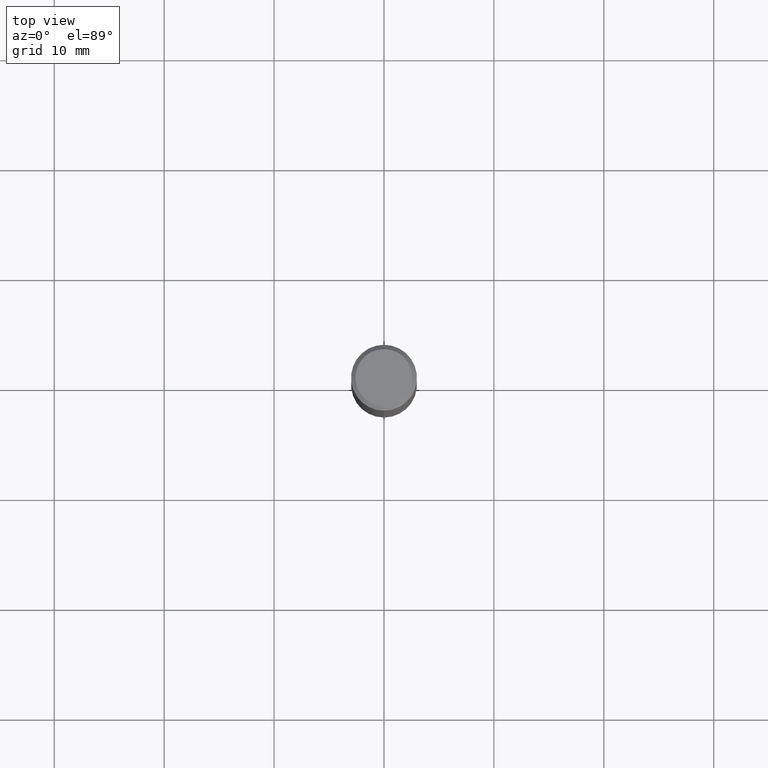
[diagram: clean part render]
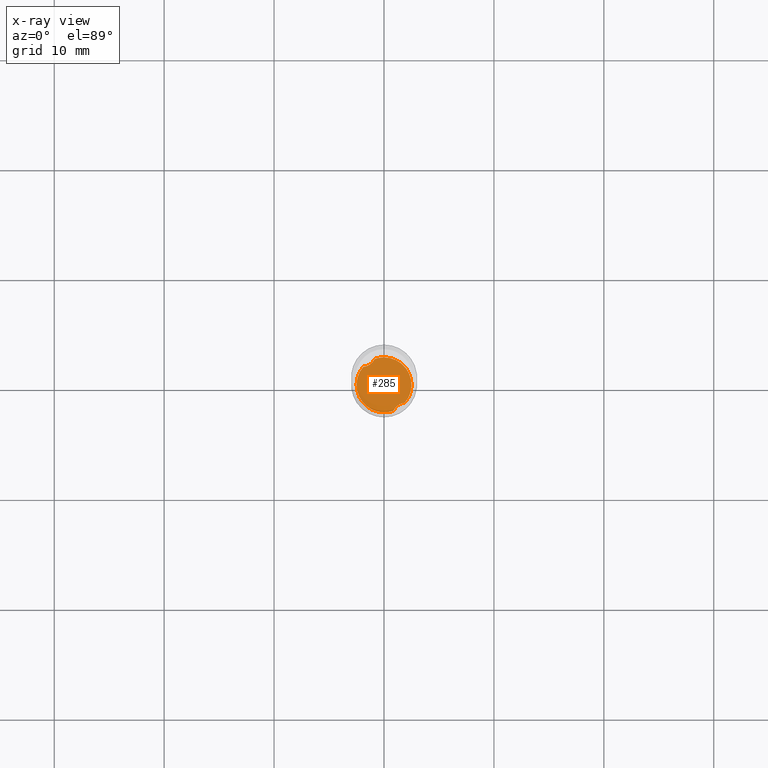
[diagram: x-ray — body ghosted, one internal face saturated and labeled with its STEP entity id]
A machine part, top view, then the same camera in x-ray: the body is ghosted and one INTERNAL B-rep face — a face not visible from any outside direction — is saturated and labeled: STEP entity #285.
In plain terms, the highlighted planar face has unit normal (-0, 0, 1).
Its self-contained STEP definition (entity closure, byte-faithful):
#285=ADVANCED_FACE('',(#776),#777,.T.);
#299=EDGE_CURVE('',#653,#461,#794,.T.);
#309=EDGE_CURVE('',#461,#543,#804,.T.);
#351=VERTEX_POINT('',#851);
#377=EDGE_CURVE('',#351,#543,#878,.T.);
#461=VERTEX_POINT('',#971);
#473=EDGE_CURVE('',#653,#637,#983,.T.);
#497=EDGE_CURVE('',#567,#637,#1011,.T.);
#543=VERTEX_POINT('',#1062);
#567=VERTEX_POINT('',#1086);
#637=VERTEX_POINT('',#1163);
#653=VERTEX_POINT('',#1181);
#737=EDGE_CURVE('',#351,#567,#1272,.T.);
#776=FACE_OUTER_BOUND('',#1443,.T.);
#777=PLANE('',#1444);
#794=CIRCLE('',#1477,2.4999);
#804=CIRCLE('',#1510,2.4999);
#851=CARTESIAN_POINT('',(0.854254278690827,-2.3494147435773,-38.0));
#878=B_SPLINE_CURVE_WITH_KNOTS('',3,(#2084,#2085,#2086,#2087,#2088,#2089,#2090,#2091,#2092,#2093,#2094,#2095),.UNSPECIFIED.,.F.,.F.,(4,2,2,2,2,4),(0.0,0.546610759441044,1.04428614259567,1.54337661247923,1.8729109885862,2.21744017525934),.UNSPECIFIED.);
#971=CARTESIAN_POINT('',(-3.05956767359927E-016,2.4999,-38.0));
#983=B_SPLINE_CURVE_WITH_KNOTS('',3,(#3794,#3795,#3796,#3797,#3798,#3799,#3800,#3801,#3802,#3803,#3804,#3805),.UNSPECIFIED.,.F.,.F.,(4,2,2,2,2,4),(0.0,0.546610759441123,1.04428614259583,1.54337661247951,1.87291098858658,2.21744017525971),.UNSPECIFIED.);
#1011=CIRCLE('',#3841,2.4999);
#1062=CARTESIAN_POINT('',(1.89294965054159,-1.63286301645744,-38.0));
#1086=CARTESIAN_POINT('',(3.05941161432633E-016,-2.4999,-38.0));
#1163=CARTESIAN_POINT('',(-1.89294965054159,1.63286301645744,-38.0));
#1181=CARTESIAN_POINT('',(-0.854254278690824,2.34941474357731,-38.0));
#1272=CIRCLE('',#5178,2.4999);
#1443=EDGE_LOOP('',(#5187,#5188,#5189,#5190,#5191,#5192));
#1444=AXIS2_PLACEMENT_3D('',#5193,#5194,#5195);
#1477=AXIS2_PLACEMENT_3D('',#5222,#5223,#5224);
#1510=AXIS2_PLACEMENT_3D('',#5225,#5226,#5227);
#2084=CARTESIAN_POINT('',(0.77446938444466,-2.5499,-38.0));
#2085=CARTESIAN_POINT('',(0.829262580566437,-2.37613046128546,-38.0));
#2086=CARTESIAN_POINT('',(0.914555981602328,-2.21479010620971,-37.9999999999918));
#2087=CARTESIAN_POINT('',(1.13840373266715,-1.94923688572362,-37.9999999999918));
#2088=CARTESIAN_POINT('',(1.26768540000005,-1.84588000671945,-38.0000000000004));
#2089=CARTESIAN_POINT('',(1.56239769409013,-1.69444166742258,-38.0000000000004));
#2090=CARTESIAN_POINT('',(1.72262856503765,-1.64921326820745,-38.0000000000001));
#2091=CARTESIAN_POINT('',(1.99712116742588,-1.62284830577956,-38.0000000000001));
#2092=CARTESIAN_POINT('',(2.10708537188687,-1.62528608225171,-38.0));
#2093=CARTESIAN_POINT('',(2.32967953527968,-1.65393297399047,-38.0));
#2094=CARTESIAN_POINT('',(2.44156370348642,-1.68112742310306,-38.0));
#2095=CARTESIAN_POINT('',(2.5499,-1.71902286515707,-38.0));
#3794=CARTESIAN_POINT('',(-0.774469384444656,2.5499,-38.0));
#3795=CARTESIAN_POINT('',(-0.82926258056644,2.37613046128544,-38.0));
#3796=CARTESIAN_POINT('',(-0.914555981602334,2.21479010620971,-37.9999999999918));
#3797=CARTESIAN_POINT('',(-1.13840373266714,1.94923688572363,-37.9999999999918));
#3798=CARTESIAN_POINT('',(-1.26768540000004,1.84588000671945,-38.0000000000004));
#3799=CARTESIAN_POINT('',(-1.56239769409015,1.69444166742258,-38.0000000000004));
#3800=CARTESIAN_POINT('',(-1.72262856503769,1.64921326820745,-38.0));
#3801=CARTESIAN_POINT('',(-1.99712116742587,1.62284830577957,-38.0));
#3802=CARTESIAN_POINT('',(-2.10708537188683,1.62528608225171,-38.0));
#3803=CARTESIAN_POINT('',(-2.32967953527967,1.65393297399047,-38.0));
#3804=CARTESIAN_POINT('',(-2.44156370348641,1.68112742310305,-38.0));
#3805=CARTESIAN_POINT('',(-2.5499,1.71902286515707,-38.0));
#3841=AXIS2_PLACEMENT_3D('',#5454,#5455,#5456);
#5178=AXIS2_PLACEMENT_3D('',#5755,#5756,#5757);
#5187=ORIENTED_EDGE('',*,*,#377,.T.);
#5188=ORIENTED_EDGE('',*,*,#309,.F.);
#5189=ORIENTED_EDGE('',*,*,#299,.F.);
#5190=ORIENTED_EDGE('',*,*,#473,.T.);
#5191=ORIENTED_EDGE('',*,*,#497,.F.);
#5192=ORIENTED_EDGE('',*,*,#737,.F.);
#5193=CARTESIAN_POINT('',(0.0,1.24995,-38.0));
#5194=DIRECTION('',(-0.0,0.0,1.0));
#5195=DIRECTION('',(0.0,-1.0,0.0));
#5222=CARTESIAN_POINT('',(0.0,0.0,-38.0));
#5223=DIRECTION('',(0.0,0.0,-1.0));
#5224=DIRECTION('',(0.0,1.0,0.0));
#5225=CARTESIAN_POINT('',(0.0,0.0,-38.0));
#5226=DIRECTION('',(0.0,0.0,-1.0));
#5227=DIRECTION('',(0.0,1.0,0.0));
#5454=CARTESIAN_POINT('',(0.0,0.0,-38.0));
#5455=DIRECTION('',(0.0,0.0,-1.0));
#5456=DIRECTION('',(0.0,1.0,0.0));
#5755=CARTESIAN_POINT('',(0.0,0.0,-38.0));
#5756=DIRECTION('',(0.0,0.0,-1.0));
#5757=DIRECTION('',(0.0,1.0,0.0));